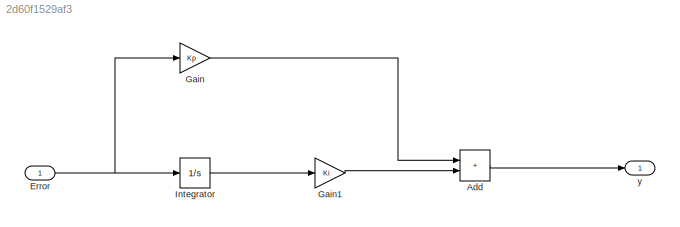
MODEL slx_2d60f1529af3
KIND model
CONFIG AbsTol = auto
CONFIG EnableMultiTasking = off
CONFIG FixedStep = auto
CONFIG MaxStep = auto
CONFIG MinStep = auto
CONFIG RelTol = 1e-3
CONFIG SampleTimeConstraint = Unconstrained
CONFIG SolverName = VariableStepAuto
CONFIG StartTime = 0.0
CONFIG StopTime = 10.0
WORKSPACE source: mxarray member
WORKSPACE Ki: Simulink.Parameter (value not decoded)
WORKSPACE Kp: Simulink.Parameter (value not decoded)
BLOCK [Sum] Add
  IconShape = rectangular
  Ports = [2, 1]
BLOCK [Inport] Error
BLOCK [Gain] Gain
  Gain = Kp
BLOCK [Gain] Gain1
  Gain = Ki
BLOCK [Integrator] Integrator
  Ports = [1, 1]
BLOCK [Outport] y
LINE Add:1 -> y:1
NET Error:1 -> Gain:1, Integrator:1
LINE Gain1:1 -> Add:2
LINE Gain:1 -> Add:1
LINE Integrator:1 -> Gain1:1
note: NET lines group one-source signal fan-out (src -> all destinations, sorted); 1:1 wires keep LINE
